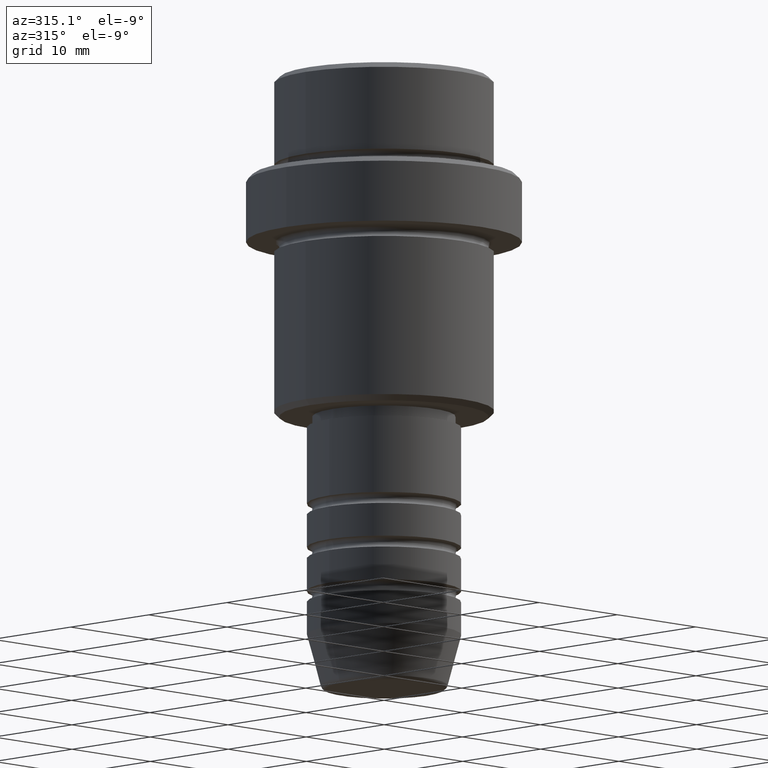
[diagram: clean part render]
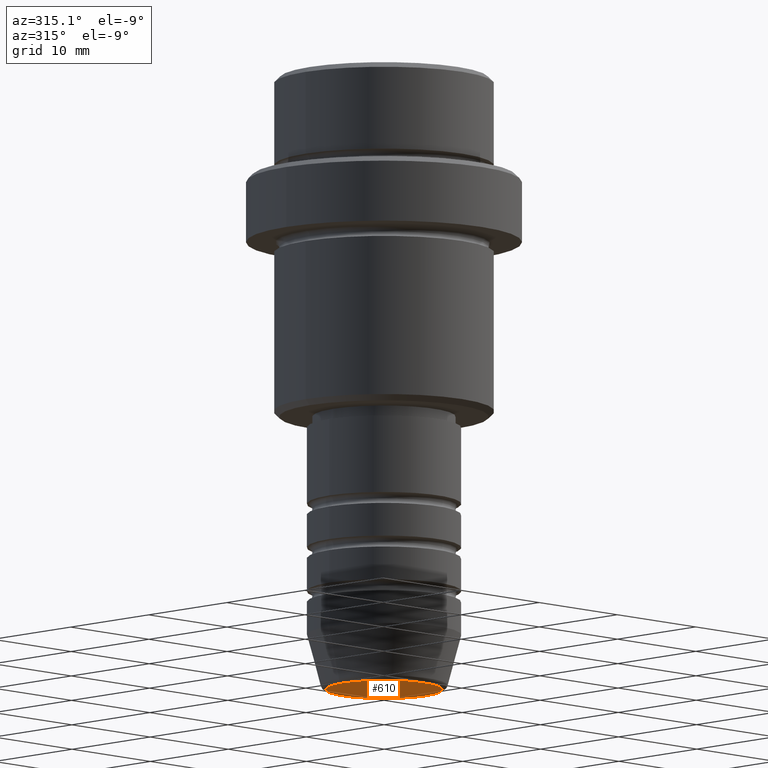
[diagram: same view with one face highlighted and labeled with its STEP entity id]
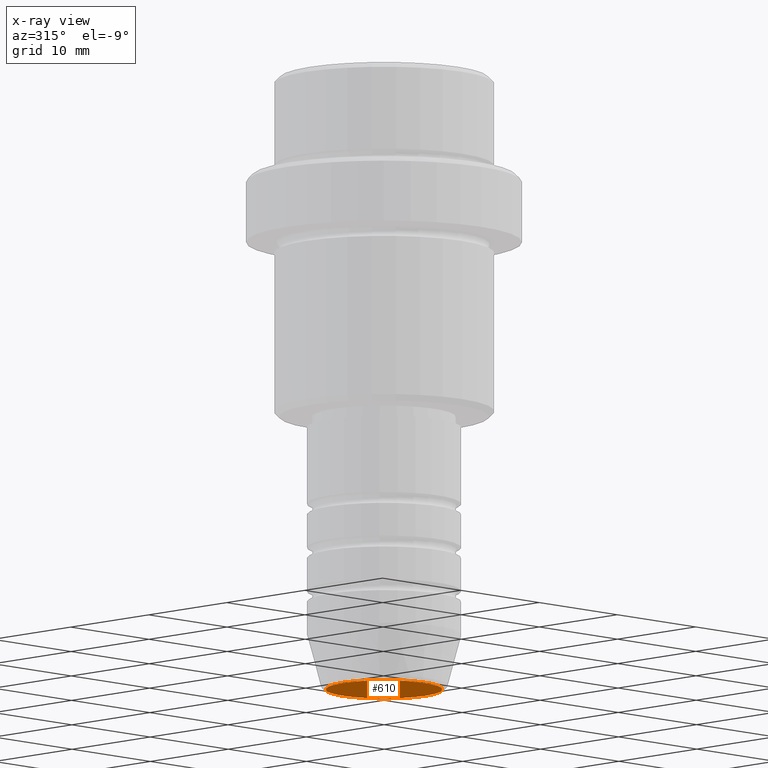
[diagram: x-ray of the same camera — body ghosted, the highlighted face saturated]
A machine part, auxiliary view. The second image highlights one B-rep face of the part: STEP entity #610.
The next image is the same camera in x-ray: the body ghosted, the highlighted face saturated — about 0% of this face is hidden behind the body in this view.
In plain terms, the highlighted planar face has unit normal (0, -0, 1).
Its self-contained STEP definition (entity closure, byte-faithful):
#13 = DIRECTION ( 'NONE',  ( 0.000000000000000000, -0.000000000000000000, 1.000000000000000000 ) ) ;
#75 = EDGE_CURVE ( 'NONE', #892, #344, #219, .T. ) ;
#104 = FACE_OUTER_BOUND ( 'NONE', #270, .T. ) ;
#143 = CARTESIAN_POINT ( 'NONE',  ( 5.276590543854903892, 0.000000000000000000, -56.00000000000000000 ) ) ;
#202 = ORIENTED_EDGE ( 'NONE', *, *, #75, .T. ) ;
#219 = CIRCLE ( 'NONE', #1310, 5.276590543854903892 ) ;
#253 = DIRECTION ( 'NONE',  ( 0.000000000000000000, 0.000000000000000000, -1.000000000000000000 ) ) ;
#270 = EDGE_LOOP ( 'NONE', ( #202, #1121 ) ) ;
#311 = CARTESIAN_POINT ( 'NONE',  ( 0.000000000000000000, 0.000000000000000000, -56.00000000000000000 ) ) ;
#344 = VERTEX_POINT ( 'NONE', #924 ) ;
#429 = AXIS2_PLACEMENT_3D ( 'NONE', #992, #13, #960 ) ;
#454 = DIRECTION ( 'NONE',  ( 1.000000000000000000, 0.000000000000000000, 0.000000000000000000 ) ) ;
#485 = CIRCLE ( 'NONE', #1269, 5.276590543854903892 ) ;
#543 = PLANE ( 'NONE',  #429 ) ;
#610 = ADVANCED_FACE ( 'NONE', ( #104 ), #543, .F. ) ;
#657 = CARTESIAN_POINT ( 'NONE',  ( 0.000000000000000000, 0.000000000000000000, -56.00000000000000000 ) ) ;
#731 = EDGE_CURVE ( 'NONE', #344, #892, #485, .T. ) ;
#892 = VERTEX_POINT ( 'NONE', #143 ) ;
#924 = CARTESIAN_POINT ( 'NONE',  ( -5.276590543854903892, 6.757689212787765916E-16, -56.00000000000000000 ) ) ;
#960 = DIRECTION ( 'NONE',  ( 1.000000000000000000, 0.000000000000000000, 0.000000000000000000 ) ) ;
#992 = CARTESIAN_POINT ( 'NONE',  ( 0.000000000000000000, 0.000000000000000000, -56.00000000000000000 ) ) ;
#1048 = DIRECTION ( 'NONE',  ( 0.000000000000000000, 0.000000000000000000, -1.000000000000000000 ) ) ;
#1071 = DIRECTION ( 'NONE',  ( 1.000000000000000000, 0.000000000000000000, 0.000000000000000000 ) ) ;
#1121 = ORIENTED_EDGE ( 'NONE', *, *, #731, .T. ) ;
#1269 = AXIS2_PLACEMENT_3D ( 'NONE', #657, #253, #454 ) ;
#1310 = AXIS2_PLACEMENT_3D ( 'NONE', #311, #1048, #1071 ) ;